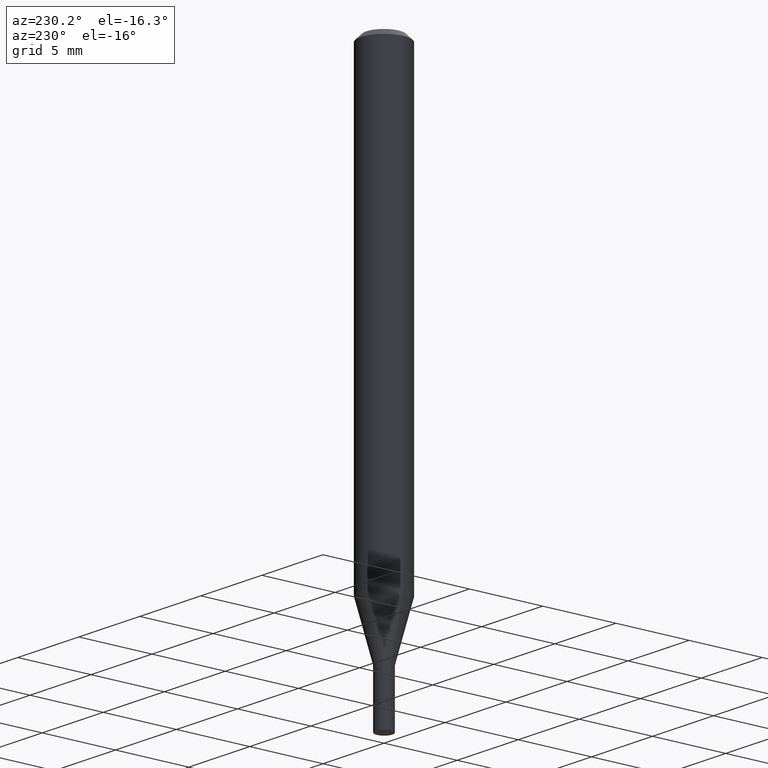
[diagram: clean part render]
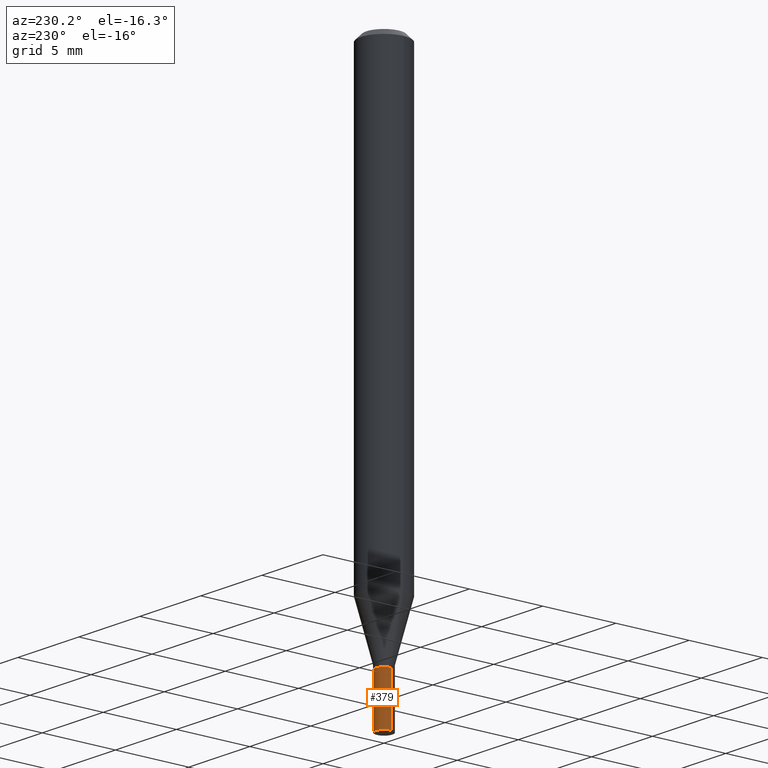
[diagram: same view with one face highlighted and labeled with its STEP entity id]
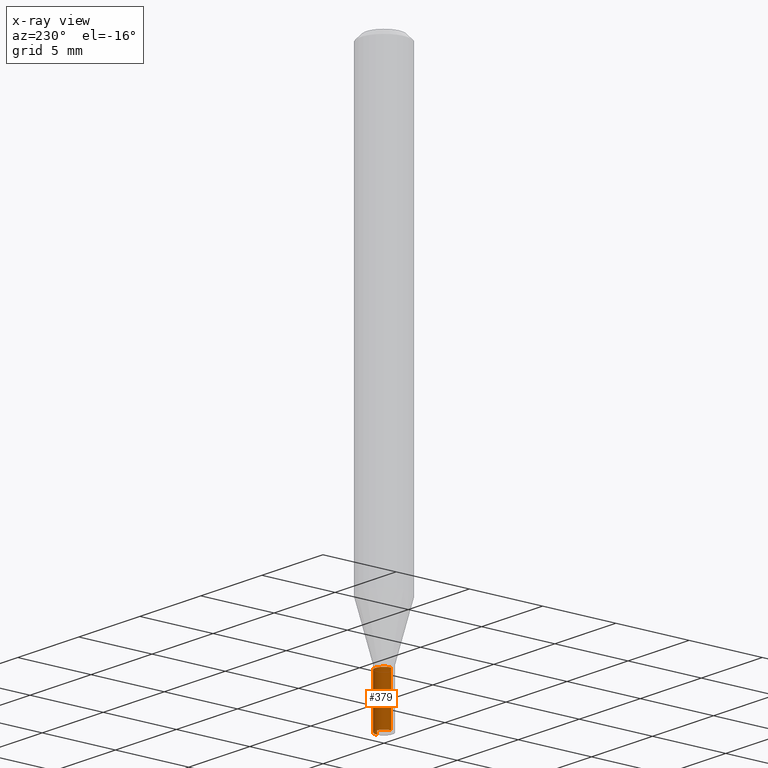
[diagram: x-ray of the same camera — body ghosted, the highlighted face saturated]
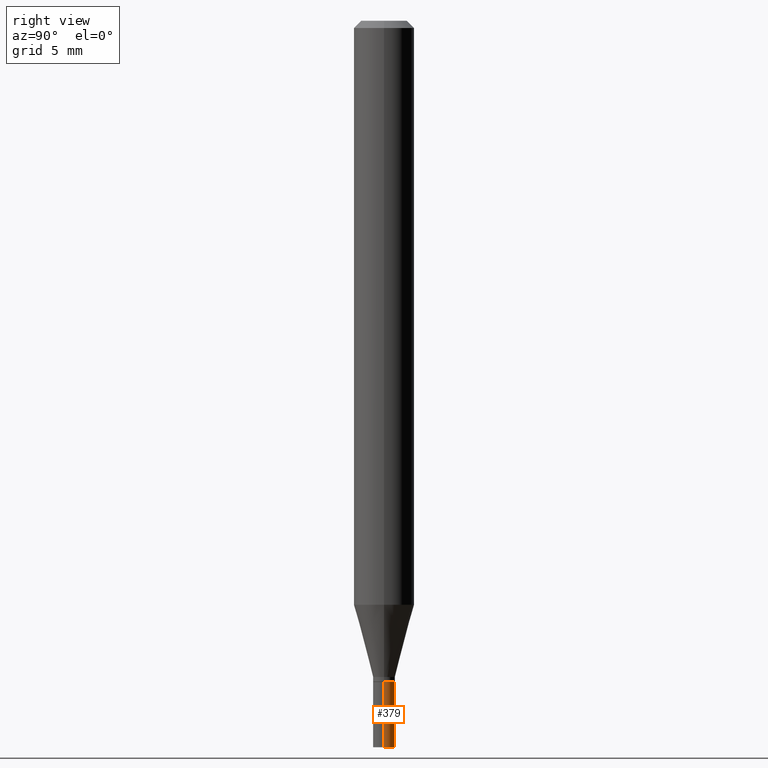
[diagram: same view with one face highlighted and labeled with its STEP entity id]
A machine part, auxiliary view. The second image highlights one B-rep face of the part: STEP entity #379.
The next image is the same camera in x-ray: the body ghosted, the highlighted face saturated — about 0% of this face is hidden behind the body in this view.
A second angle (right view) of the same face is appended — the face is thin or edge-on in the first view.
In plain terms, the highlighted cylindrical surface (edge-blend (fillet) strip) has radius 0.5715 mm, axis along (-0, 0, 1).
Its self-contained STEP definition (entity closure, byte-faithful):
#1 = DIRECTION ( 'NONE',  ( -2.445468806185136597E-29, 3.491481338843145583E-15, 1.000000000000000000 ) ) ;
#6 = AXIS2_PLACEMENT_3D ( 'NONE', #9, #79, #304 ) ;
#9 = CARTESIAN_POINT ( 'NONE',  ( 0.000000000000000000, 0.000000000000000000, 0.000000000000000000 ) ) ;
#39 = EDGE_CURVE ( 'NONE', #203, #323, #137, .T. ) ;
#44 = CARTESIAN_POINT ( 'NONE',  ( -0.02249999999999999917, -4.841674902346784228E-15, -1.500000000000000222 ) ) ;
#79 = DIRECTION ( 'NONE',  ( -2.445468806185136597E-29, 3.491481338843145583E-15, 1.000000000000000000 ) ) ;
#86 = CARTESIAN_POINT ( 'NONE',  ( -0.02249999999999999917, 1.598721155460225359E-16, -1.106760395307353780E-30 ) ) ;
#93 = VERTEX_POINT ( 'NONE', #384 ) ;
#117 = ORIENTED_EDGE ( 'NONE', *, *, #390, .T. ) ;
#128 = CARTESIAN_POINT ( 'NONE',  ( 3.668203209277704895E-29, -5.237222008264718177E-15, -1.500000000000000222 ) ) ;
#137 = CIRCLE ( 'NONE', #177, 0.02249999999999999917 ) ;
#142 = CARTESIAN_POINT ( 'NONE',  ( 0.02249999999999999917, -1.571166602479409911E-16, 1.097139774554085483E-30 ) ) ;
#154 = FACE_OUTER_BOUND ( 'NONE', #346, .T. ) ;
#158 = EDGE_CURVE ( 'NONE', #203, #226, #434, .T. ) ;
#172 = DIRECTION ( 'NONE',  ( -2.445468806185136877E-29, 3.491481338843145188E-15, 1.000000000000000000 ) ) ;
#177 = AXIS2_PLACEMENT_3D ( 'NONE', #128, #273, #314 ) ;
#179 = AXIS2_PLACEMENT_3D ( 'NONE', #461, #1, #283 ) ;
#195 = DIRECTION ( 'NONE',  ( -2.445468806185136877E-29, 3.491481338843145188E-15, 1.000000000000000000 ) ) ;
#203 = VERTEX_POINT ( 'NONE', #351 ) ;
#209 = EDGE_CURVE ( 'NONE', #226, #93, #243, .T. ) ;
#226 = VERTEX_POINT ( 'NONE', #356 ) ;
#243 = CIRCLE ( 'NONE', #179, 0.02249999999999999917 ) ;
#273 = DIRECTION ( 'NONE',  ( -2.445468806185136597E-29, 3.491481338843145583E-15, 1.000000000000000000 ) ) ;
#283 = DIRECTION ( 'NONE',  ( 1.000000000000000000, -6.982962677686269077E-15, 0.000000000000000000 ) ) ;
#291 = VECTOR ( 'NONE', #195, 39.37007874015748143 ) ;
#297 = LINE ( 'NONE', #86, #291 ) ;
#299 = CYLINDRICAL_SURFACE ( 'NONE', #6, 0.02249999999999999917 ) ;
#304 = DIRECTION ( 'NONE',  ( 1.000000000000000000, -6.982962677686266711E-15, 4.876176775795935793E-29 ) ) ;
#314 = DIRECTION ( 'NONE',  ( 1.000000000000000000, -6.982962677686269077E-15, 0.000000000000000000 ) ) ;
#317 = VECTOR ( 'NONE', #172, 39.37007874015748143 ) ;
#323 = VERTEX_POINT ( 'NONE', #44 ) ;
#346 = EDGE_LOOP ( 'NONE', ( #414, #117, #407, #400 ) ) ;
#351 = CARTESIAN_POINT ( 'NONE',  ( 0.02249999999999999917, -5.394338668512659809E-15, -1.500000000000000222 ) ) ;
#356 = CARTESIAN_POINT ( 'NONE',  ( 0.02249999999999999917, -4.922988687768834913E-15, -1.364999999999999991 ) ) ;
#379 = ADVANCED_FACE ( 'NONE', ( #154 ), #299, .T. ) ;
#384 = CARTESIAN_POINT ( 'NONE',  ( -0.02249999999999999917, -4.841674902346784228E-15, -1.364999999999999991 ) ) ;
#390 = EDGE_CURVE ( 'NONE', #323, #93, #297, .T. ) ;
#400 = ORIENTED_EDGE ( 'NONE', *, *, #158, .F. ) ;
#407 = ORIENTED_EDGE ( 'NONE', *, *, #209, .F. ) ;
#414 = ORIENTED_EDGE ( 'NONE', *, *, #39, .T. ) ;
#434 = LINE ( 'NONE', #142, #317 ) ;
#461 = CARTESIAN_POINT ( 'NONE',  ( 3.338064920442711836E-29, -4.765872027520893280E-15, -1.364999999999999991 ) ) ;